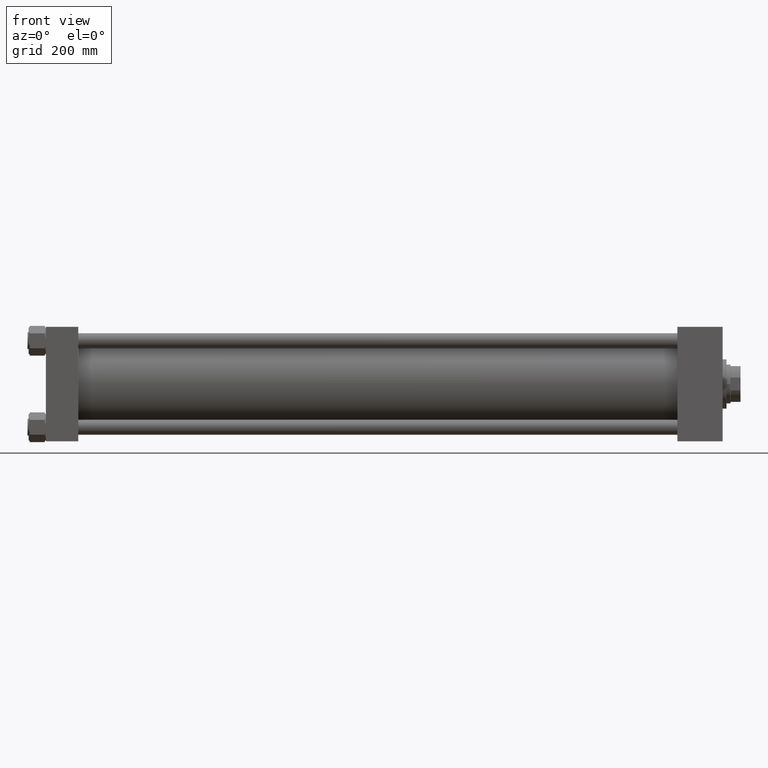
[diagram: clean part render]
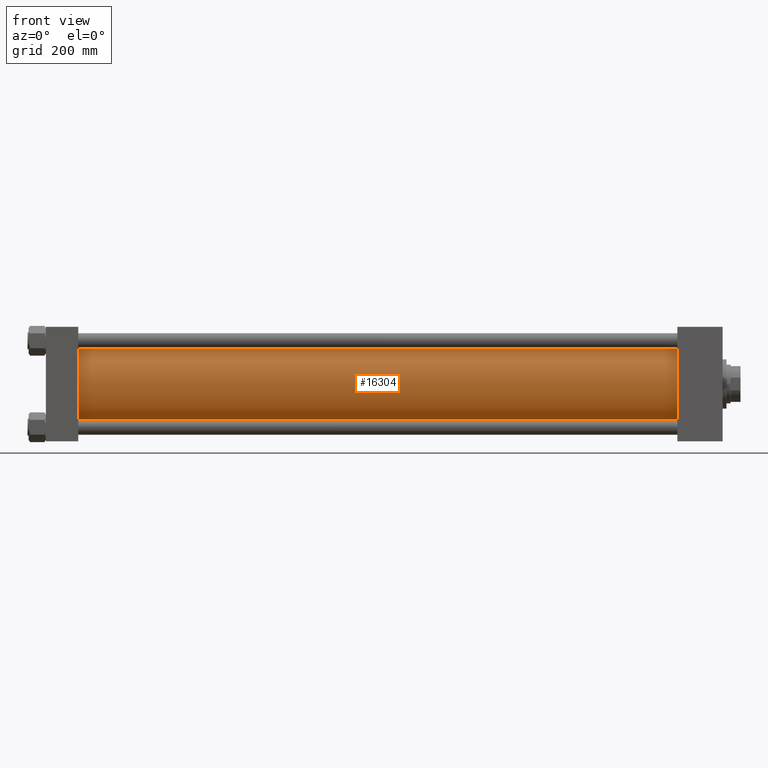
[diagram: same view with one face highlighted and labeled with its STEP entity id]
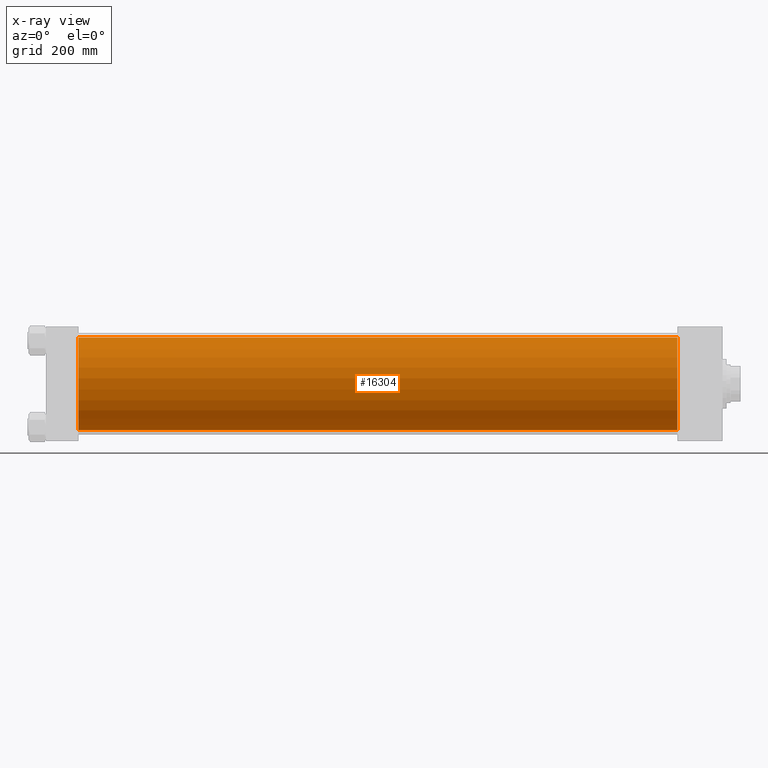
[diagram: x-ray of the same camera — body ghosted, the highlighted face saturated]
A machine part, front view. The second image highlights one B-rep face of the part: STEP entity #16304.
The next image is the same camera in x-ray: the body ghosted, the highlighted face saturated — about 0% of this face is hidden behind the body in this view.
In plain terms, the highlighted cylindrical surface (partial cylindrical patch) has radius 83 mm, axis along (-1, -0, -0).
Its self-contained STEP definition (entity closure, byte-faithful):
#1143 = VECTOR ( 'NONE', #13809, 1000.000000000000000 ) ;
#3089 = FACE_OUTER_BOUND ( 'NONE', #34868, .T. ) ;
#4210 = AXIS2_PLACEMENT_3D ( 'NONE', #14521, #49408, #49144 ) ;
#4932 = AXIS2_PLACEMENT_3D ( 'NONE', #10047, #22116, #42097 ) ;
#6093 = CARTESIAN_POINT ( 'NONE',  ( 1131.000000000000000, 7.562483218957820855E-15, -83.00000000000000000 ) ) ;
#7954 = ORIENTED_EDGE ( 'NONE', *, *, #30696, .T. ) ;
#9715 = LINE ( 'NONE', #20506, #19749 ) ;
#10047 = CARTESIAN_POINT ( 'NONE',  ( 1131.000000000000000, -2.602085213965210642E-15, 0.000000000000000000 ) ) ;
#10998 = VERTEX_POINT ( 'NONE', #28195 ) ;
#11650 = CARTESIAN_POINT ( 'NONE',  ( 58.00000000000004974, -2.602085213965210642E-15, 83.00000000000000000 ) ) ;
#13516 = CIRCLE ( 'NONE', #37272, 83.00000000000000000 ) ;
#13809 = DIRECTION ( 'NONE',  ( -1.000000000000000000, -0.000000000000000000, -0.000000000000000000 ) ) ;
#13882 = VERTEX_POINT ( 'NONE', #36330 ) ;
#13902 = CYLINDRICAL_SURFACE ( 'NONE', #4932, 83.00000000000000000 ) ;
#14521 = CARTESIAN_POINT ( 'NONE',  ( 1131.000000000000000, -2.602085213965210642E-15, 0.000000000000000000 ) ) ;
#15552 = CARTESIAN_POINT ( 'NONE',  ( 58.00000000000004974, -2.602085213965210642E-15, 0.000000000000000000 ) ) ;
#16304 = ADVANCED_FACE ( 'NONE', ( #3089 ), #13902, .T. ) ;
#19002 = ORIENTED_EDGE ( 'NONE', *, *, #32858, .F. ) ;
#19749 = VECTOR ( 'NONE', #29233, 1000.000000000000000 ) ;
#20506 = CARTESIAN_POINT ( 'NONE',  ( 1131.000000000000000, -2.602085213965210642E-15, 83.00000000000000000 ) ) ;
#20551 = EDGE_CURVE ( 'NONE', #13882, #39396, #9715, .T. ) ;
#21741 = EDGE_CURVE ( 'NONE', #13882, #10998, #28000, .T. ) ;
#22116 = DIRECTION ( 'NONE',  ( -1.000000000000000000, -0.000000000000000000, -0.000000000000000000 ) ) ;
#26905 = ORIENTED_EDGE ( 'NONE', *, *, #21741, .F. ) ;
#28000 = CIRCLE ( 'NONE', #4210, 83.00000000000000000 ) ;
#28195 = CARTESIAN_POINT ( 'NONE',  ( 1131.000000000000000, 7.562483218957820855E-15, -83.00000000000000000 ) ) ;
#29233 = DIRECTION ( 'NONE',  ( -1.000000000000000000, -0.000000000000000000, -0.000000000000000000 ) ) ;
#30696 = EDGE_CURVE ( 'NONE', #39396, #34099, #13516, .T. ) ;
#31226 = DIRECTION ( 'NONE',  ( 1.000000000000000000, -0.000000000000000000, -0.000000000000000000 ) ) ;
#32858 = EDGE_CURVE ( 'NONE', #10998, #34099, #44852, .T. ) ;
#33671 = ORIENTED_EDGE ( 'NONE', *, *, #20551, .T. ) ;
#34099 = VERTEX_POINT ( 'NONE', #48848 ) ;
#34868 = EDGE_LOOP ( 'NONE', ( #19002, #26905, #33671, #7954 ) ) ;
#36330 = CARTESIAN_POINT ( 'NONE',  ( 1131.000000000000000, -2.602085213965210642E-15, 83.00000000000000000 ) ) ;
#37272 = AXIS2_PLACEMENT_3D ( 'NONE', #15552, #31226, #46865 ) ;
#39396 = VERTEX_POINT ( 'NONE', #11650 ) ;
#42097 = DIRECTION ( 'NONE',  ( 0.000000000000000000, 0.000000000000000000, 1.000000000000000000 ) ) ;
#44852 = LINE ( 'NONE', #6093, #1143 ) ;
#46865 = DIRECTION ( 'NONE',  ( 0.000000000000000000, 0.000000000000000000, 1.000000000000000000 ) ) ;
#48848 = CARTESIAN_POINT ( 'NONE',  ( 58.00000000000004974, 7.562483218957820855E-15, -83.00000000000000000 ) ) ;
#49144 = DIRECTION ( 'NONE',  ( 0.000000000000000000, 0.000000000000000000, -1.000000000000000000 ) ) ;
#49408 = DIRECTION ( 'NONE',  ( 1.000000000000000000, 0.000000000000000000, 0.000000000000000000 ) ) ;